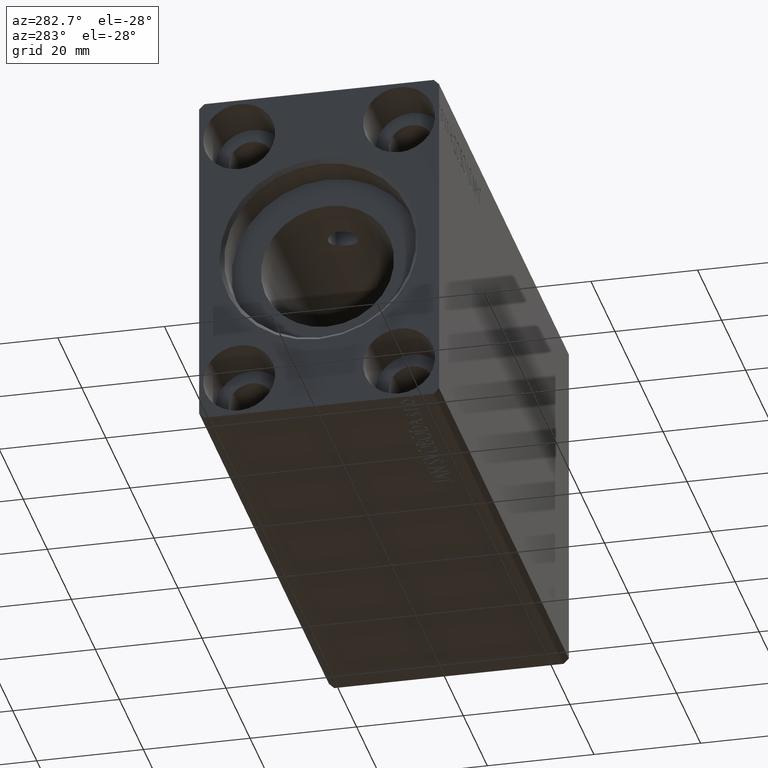
[diagram: clean part render]
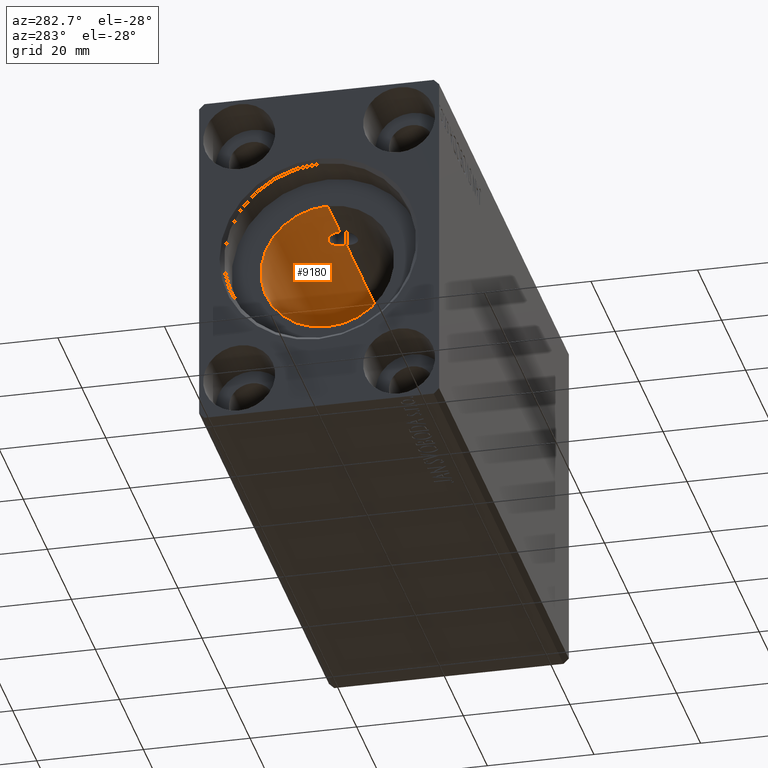
[diagram: same view with one face highlighted and labeled with its STEP entity id]
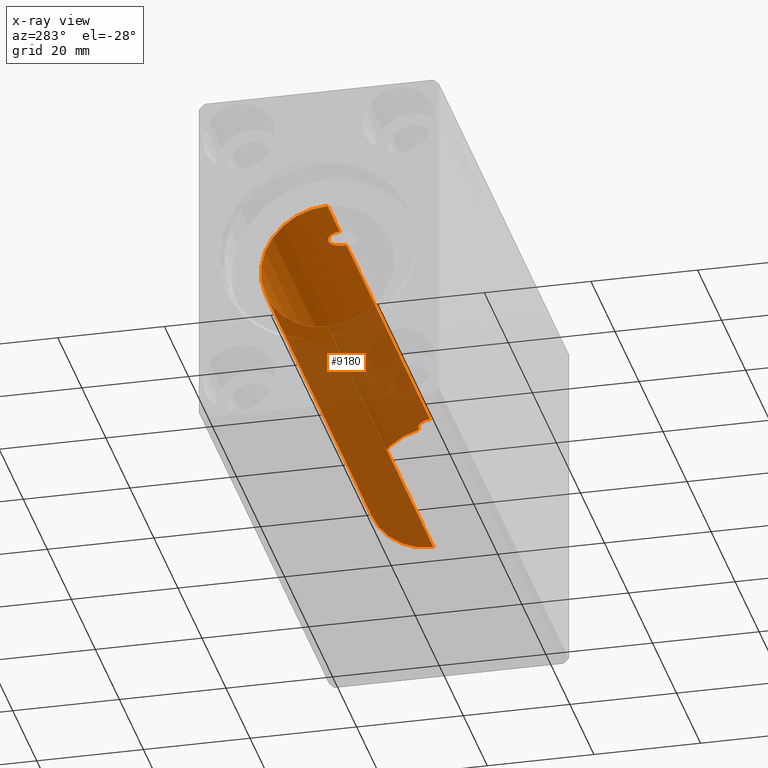
[diagram: x-ray of the same camera — body ghosted, the highlighted face saturated]
A machine part, auxiliary view. The second image highlights one B-rep face of the part: STEP entity #9180.
The next image is the same camera in x-ray: the body ghosted, the highlighted face saturated — about 62% of this face is hidden behind the body in this view.
In plain terms, the highlighted cylindrical surface (partial cylindrical patch) has radius 12.5 mm, axis along (-1, -0, -0).
Its self-contained STEP definition (entity closure, byte-faithful):
#920 = CARTESIAN_POINT ( 'NONE',  ( 92.25000000000000000, -8.104062742644080798E-22, 12.50000000000000000 ) ) ;
#1237 = CARTESIAN_POINT ( 'NONE',  ( 17.24999999999999645, -8.103620980537157032E-22, 12.50000000000000000 ) ) ;
#1514 = VERTEX_POINT ( 'NONE', #5866 ) ;
#2185 = CARTESIAN_POINT ( 'NONE',  ( 17.33875525846363885, 0.7161093388687591599, 12.48072637757694814 ) ) ;
#2408 = DIRECTION ( 'NONE',  ( 0.000000000000000000, 0.000000000000000000, 1.000000000000000000 ) ) ;
#2616 = CARTESIAN_POINT ( 'NONE',  ( 22.07047921186047290, 1.818676167131147325, 12.36765088277932989 ) ) ;
#3698 = CARTESIAN_POINT ( 'NONE',  ( 93.41516698931957308, 2.255201745996399776, 12.29527704633349394 ) ) ;
#4125 = CARTESIAN_POINT ( 'NONE',  ( 93.73581696100352190, 2.449381928324197322, 12.25807084048869910 ) ) ;
#4499 = AXIS2_PLACEMENT_3D ( 'NONE', #15934, #23456, #17212 ) ;
#4828 = EDGE_CURVE ( 'NONE', #8226, #1514, #35330, .T. ) ;
#5626 = CARTESIAN_POINT ( 'NONE',  ( 22.66183687518038425, 0.7137085024257877608, 12.48085335430237741 ) ) ;
#5838 = CARTESIAN_POINT ( 'NONE',  ( 17.26801655924787582, 0.3623570601300955540, 12.49600099464360348 ) ) ;
#5866 = CARTESIAN_POINT ( 'NONE',  ( 22.74999999999999645, -1.511678664438758190E-15, 12.50000000000000000 ) ) ;
#6485 = CARTESIAN_POINT ( 'NONE',  ( 21.21980637152028848, 2.471158625858972613, 12.25350115374743432 ) ) ;
#6720 = B_SPLINE_CURVE_WITH_KNOTS ( 'NONE', 3,
 ( #26312, #36223, #29768, #20072, #23725, #23083, #4125, #3698, #10364, #39884, #7138, #23512, #7356, #20509, #26532, #29348, #22869, #9933 ),
 .UNSPECIFIED., .F., .F.,
 ( 4, 2, 2, 2, 2, 2, 2, 2, 4 ),
 ( 0.004113068640024458884, 0.004676958948608751603, 0.005240849257193044321, 0.005804739565777337039, 0.006368629874361630624, 0.006932520182945923343, 0.007496410491530216061, 0.008060300800114508779, 0.008624191108698803232 ),
 .UNSPECIFIED. ) ;
#7138 = CARTESIAN_POINT ( 'NONE',  ( 92.86498662063814891, 1.743324452953735282, 12.37879095893013215 ) ) ;
#7356 = CARTESIAN_POINT ( 'NONE',  ( 92.55476656035875749, 1.272344463615744159, 12.43628639655211465 ) ) ;
#7610 = VERTEX_POINT ( 'NONE', #1237 ) ;
#8226 = VERTEX_POINT ( 'NONE', #920 ) ;
#8228 = ORIENTED_EDGE ( 'NONE', *, *, #34389, .T. ) ;
#8443 = VERTEX_POINT ( 'NONE', #16182 ) ;
#8783 = ORIENTED_EDGE ( 'NONE', *, *, #40772, .T. ) ;
#8889 = CARTESIAN_POINT ( 'NONE',  ( 95.20000000000000284, 1.530808498934191521E-15, -12.50000000000000000 ) ) ;
#9064 = CARTESIAN_POINT ( 'NONE',  ( 21.37900096165433439, 2.386111389769060231, 12.27057149286319593 ) ) ;
#9180 = ADVANCED_FACE ( 'NONE', ( #41201 ), #35366, .F. ) ;
#9277 = CARTESIAN_POINT ( 'NONE',  ( 17.24999999999999645, 0.1797902386970152144, 12.50000000000000355 ) ) ;
#9401 = LINE ( 'NONE', #22332, #28052 ) ;
#9491 = VERTEX_POINT ( 'NONE', #28221 ) ;
#9933 = CARTESIAN_POINT ( 'NONE',  ( 92.25000000000000000, -8.104062742644080798E-22, 12.50000000000000000 ) ) ;
#10036 = DIRECTION ( 'NONE',  ( -1.000000000000000000, -0.000000000000000000, -0.000000000000000000 ) ) ;
#10364 = CARTESIAN_POINT ( 'NONE',  ( 93.26570526218635848, 2.142534314622510205, 12.31570373887440617 ) ) ;
#12047 = CIRCLE ( 'NONE', #4499, 12.50000000000000000 ) ;
#12085 = CARTESIAN_POINT ( 'NONE',  ( 18.32234902202253934, 2.186313684462028561, 12.30773175274779874 ) ) ;
#12304 = CARTESIAN_POINT ( 'NONE',  ( 17.24999999999999645, -8.103620980537157032E-22, 12.50000000000000000 ) ) ;
#12516 = CARTESIAN_POINT ( 'NONE',  ( 21.67945626264003067, 2.185085325223807384, 12.30795898788033149 ) ) ;
#14636 = CARTESIAN_POINT ( 'NONE',  ( 7.000000000000006217, 0.000000000000000000, 12.50000000000000000 ) ) ;
#15325 = CARTESIAN_POINT ( 'NONE',  ( 20.71518258531765611, 2.661545112444663630, 12.21341444467051041 ) ) ;
#15537 = CARTESIAN_POINT ( 'NONE',  ( 19.63824300832298775, 2.732041892228273650, 12.19783792929032451 ) ) ;
#15934 = CARTESIAN_POINT ( 'NONE',  ( 7.000000000000006217, 0.000000000000000000, 0.000000000000000000 ) ) ;
#16182 = CARTESIAN_POINT ( 'NONE',  ( 95.20000000000000284, 2.742717630380503202, 12.19538847269737403 ) ) ;
#17212 = DIRECTION ( 'NONE',  ( 0.000000000000000000, 0.000000000000000000, 1.000000000000000000 ) ) ;
#17915 = VERTEX_POINT ( 'NONE', #14636 ) ;
#18402 = ORIENTED_EDGE ( 'NONE', *, *, #40400, .F. ) ;
#18473 = EDGE_CURVE ( 'NONE', #1514, #7610, #27290, .T. ) ;
#18767 = CARTESIAN_POINT ( 'NONE',  ( 19.82112214477041690, 2.750072126172943499, 12.19373213197448891 ) ) ;
#18981 = CARTESIAN_POINT ( 'NONE',  ( 22.74999999999999645, -1.511678664438758190E-15, 12.50000000000000000 ) ) ;
#19625 = CARTESIAN_POINT ( 'NONE',  ( 21.81755859883519832, 2.071460332093634449, 12.32783125500043475 ) ) ;
#20072 = CARTESIAN_POINT ( 'NONE',  ( 94.44628134173851208, 2.700353391089858501, 12.20486624118368013 ) ) ;
#20282 = DIRECTION ( 'NONE',  ( -1.000000000000000000, -0.000000000000000000, -0.000000000000000000 ) ) ;
#20509 = CARTESIAN_POINT ( 'NONE',  ( 92.40403503946751584, 0.9268187158882578158, 12.46679938232103524 ) ) ;
#21600 = CARTESIAN_POINT ( 'NONE',  ( 95.20000000000000284, 0.000000000000000000, 0.000000000000000000 ) ) ;
#22003 = CARTESIAN_POINT ( 'NONE',  ( 18.18281570787819490, 2.071938085700525622, 12.32776436388421892 ) ) ;
#22332 = CARTESIAN_POINT ( 'NONE',  ( 95.20000000000000284, 1.530808498934191521E-15, -12.50000000000000000 ) ) ;
#22647 = CARTESIAN_POINT ( 'NONE',  ( 20.88911019966546689, 2.608454636563483753, 12.22501042486415734 ) ) ;
#22869 = CARTESIAN_POINT ( 'NONE',  ( 92.25000000000000000, 0.1880885465574526627, 12.50000000000000000 ) ) ;
#23083 = CARTESIAN_POINT ( 'NONE',  ( 93.90893408595756853, 2.531291100993703580, 12.24118640095266208 ) ) ;
#23456 = DIRECTION ( 'NONE',  ( -1.000000000000000000, 0.000000000000000000, 0.000000000000000000 ) ) ;
#23512 = CARTESIAN_POINT ( 'NONE',  ( 92.64865820163907983, 1.438281622493079004, 12.41793025135652151 ) ) ;
#23725 = CARTESIAN_POINT ( 'NONE',  ( 94.26365065459877712, 2.656247185086962670, 12.21468092225727098 ) ) ;
#25038 = DIRECTION ( 'NONE',  ( 0.000000000000000000, 0.000000000000000000, 1.000000000000000000 ) ) ;
#25238 = CARTESIAN_POINT ( 'NONE',  ( 17.39096530913844063, 0.8875746957000570925, 12.46956333986168453 ) ) ;
#25248 = VECTOR ( 'NONE', #25639, 1000.000000000000000 ) ;
#25426 = CARTESIAN_POINT ( 'NONE',  ( 95.20000000000000284, 0.000000000000000000, 12.50000000000000000 ) ) ;
#25471 = AXIS2_PLACEMENT_3D ( 'NONE', #21600, #38175, #25038 ) ;
#25639 = DIRECTION ( 'NONE',  ( -1.000000000000000000, -0.000000000000000000, -0.000000000000000000 ) ) ;
#25660 = CARTESIAN_POINT ( 'NONE',  ( 18.77974451819726909, 2.471050917389816082, 12.25352600714093398 ) ) ;
#26091 = CARTESIAN_POINT ( 'NONE',  ( 20.35990839767687888, 2.732356942495139052, 12.19776784176773177 ) ) ;
#26312 = CARTESIAN_POINT ( 'NONE',  ( 95.20000000000000284, 2.742717630380503202, 12.19538847269737403 ) ) ;
#26330 = ORIENTED_EDGE ( 'NONE', *, *, #33576, .T. ) ;
#26532 = CARTESIAN_POINT ( 'NONE',  ( 92.34703364130706404, 0.7482030800369100509, 12.47895455136123033 ) ) ;
#26545 = VECTOR ( 'NONE', #20282, 1000.000000000000000 ) ;
#26955 = LINE ( 'NONE', #33651, #26545 ) ;
#27290 = B_SPLINE_CURVE_WITH_KNOTS ( 'NONE', 3,
 ( #18981, #35571, #31911, #5626, #28898, #42025, #28681, #29336, #2616, #19625, #12516, #9064, #6485, #22647, #15325, #26091, #28465, #18767, #15537, #41596, #32127, #25660, #38802, #12085, #22003, #35351, #42457, #35136, #41815, #25238, #2185, #5838, #9277, #12304 ),
 .UNSPECIFIED., .F., .F.,
 ( 4, 2, 2, 2, 2, 2, 2, 2, 2, 2, 2, 2, 2, 2, 2, 2, 4 ),
 ( 2.599920591929159039E-18, 0.0005390119442936759609, 0.001078023888587349103, 0.001617035832881022353, 0.002156047777174695170, 0.002695059721468369071, 0.003234071665762042538, 0.003773083610055716439, 0.004312095554349390340, 0.004851107498643063808, 0.005390119442936737275, 0.005929131387230410742, 0.006468143331524083342, 0.007007155275817756809, 0.007546167220111430277, 0.008085179164405102009, 0.008624191108698777211 ),
 .UNSPECIFIED. ) ;
#28052 = VECTOR ( 'NONE', #10036, 1000.000000000000000 ) ;
#28221 = CARTESIAN_POINT ( 'NONE',  ( 7.000000000000006217, 1.530808498934191521E-15, -12.50000000000000000 ) ) ;
#28251 = ORIENTED_EDGE ( 'NONE', *, *, #35339, .F. ) ;
#28465 = CARTESIAN_POINT ( 'NONE',  ( 20.18108870438736346, 2.749927429476677787, 12.19376476475220095 ) ) ;
#28634 = CIRCLE ( 'NONE', #35519, 12.50000000000000000 ) ;
#28681 = CARTESIAN_POINT ( 'NONE',  ( 22.38587848816668568, 1.379248010154821680, 12.42458424934352479 ) ) ;
#28898 = CARTESIAN_POINT ( 'NONE',  ( 22.60867646871341918, 0.8886934239120857226, 12.46948724203196335 ) ) ;
#29336 = CARTESIAN_POINT ( 'NONE',  ( 22.18627283856515220, 1.677781961151364465, 12.38780313588274495 ) ) ;
#29348 = CARTESIAN_POINT ( 'NONE',  ( 92.26975026897240184, 0.3791764174589791758, 12.49561282164099474 ) ) ;
#29768 = CARTESIAN_POINT ( 'NONE',  ( 94.82245239905850553, 2.750816176824124160, 12.19359170889686084 ) ) ;
#30862 = VERTEX_POINT ( 'NONE', #8889 ) ;
#31297 = CARTESIAN_POINT ( 'NONE',  ( 95.20000000000000284, 0.000000000000000000, 0.000000000000000000 ) ) ;
#31911 = CARTESIAN_POINT ( 'NONE',  ( 22.73205317166888051, 0.3614427253092855619, 12.49601694278448250 ) ) ;
#32127 = CARTESIAN_POINT ( 'NONE',  ( 19.11339104890478424, 2.609413850856260542, 12.22480885735935807 ) ) ;
#33576 = EDGE_CURVE ( 'NONE', #17915, #9491, #12047, .T. ) ;
#33651 = CARTESIAN_POINT ( 'NONE',  ( 95.20000000000000284, 0.000000000000000000, 12.50000000000000000 ) ) ;
#34389 = EDGE_CURVE ( 'NONE', #7610, #17915, #26955, .T. ) ;
#34602 = ORIENTED_EDGE ( 'NONE', *, *, #4828, .T. ) ;
#35136 = CARTESIAN_POINT ( 'NONE',  ( 17.61514506747045417, 1.380936338483346404, 12.42438984275412572 ) ) ;
#35330 = LINE ( 'NONE', #25426, #25248 ) ;
#35339 = EDGE_CURVE ( 'NONE', #8443, #30862, #28634, .T. ) ;
#35351 = CARTESIAN_POINT ( 'NONE',  ( 17.92756204089139160, 1.816614182526466559, 12.36796727656868455 ) ) ;
#35366 = CYLINDRICAL_SURFACE ( 'NONE', #25471, 12.50000000000000000 ) ;
#35404 = ORIENTED_EDGE ( 'NONE', *, *, #18473, .T. ) ;
#35519 = AXIS2_PLACEMENT_3D ( 'NONE', #31297, #38601, #2408 ) ;
#35571 = CARTESIAN_POINT ( 'NONE',  ( 22.74999999999998934, 0.1822994177812581051, 12.50000000000000178 ) ) ;
#36223 = CARTESIAN_POINT ( 'NONE',  ( 95.01261255686311813, 2.756381993132341890, 12.19231538579150964 ) ) ;
#36244 = EDGE_LOOP ( 'NONE', ( #18402, #28251, #8783, #34602, #35404, #8228, #26330 ) ) ;
#38175 = DIRECTION ( 'NONE',  ( -1.000000000000000000, -0.000000000000000000, -0.000000000000000000 ) ) ;
#38601 = DIRECTION ( 'NONE',  ( -1.000000000000000000, 0.000000000000000000, 0.000000000000000000 ) ) ;
#38802 = CARTESIAN_POINT ( 'NONE',  ( 18.61962949803049128, 2.385174544570503041, 12.27074450945806561 ) ) ;
#39884 = CARTESIAN_POINT ( 'NONE',  ( 92.98885734544683146, 1.885082690488657287, 12.35772936760957030 ) ) ;
#40400 = EDGE_CURVE ( 'NONE', #30862, #9491, #9401, .T. ) ;
#40772 = EDGE_CURVE ( 'NONE', #8443, #8226, #6720, .T. ) ;
#41201 = FACE_OUTER_BOUND ( 'NONE', #36244, .T. ) ;
#41596 = CARTESIAN_POINT ( 'NONE',  ( 19.28509362000097482, 2.661546522184825125, 12.21341365713819727 ) ) ;
#41815 = CARTESIAN_POINT ( 'NONE',  ( 17.52880097882882282, 1.219846816747368390, 12.44145379250113415 ) ) ;
#42025 = CARTESIAN_POINT ( 'NONE',  ( 22.47040815374280598, 1.221495998374424907, 12.44129557589794288 ) ) ;
#42457 = CARTESIAN_POINT ( 'NONE',  ( 17.81420523562633207, 1.678338305643693573, 12.38772088269205263 ) ) ;